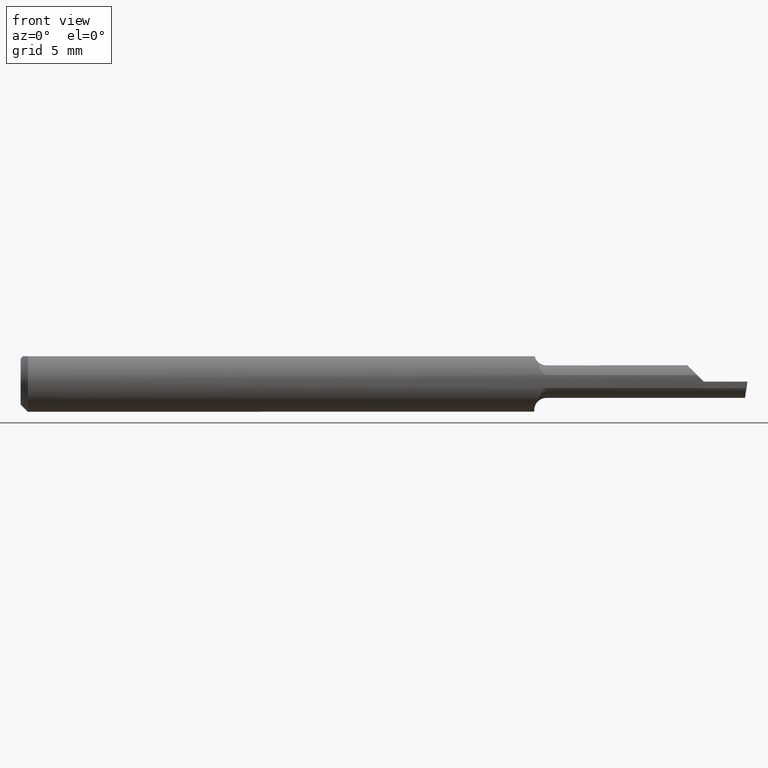
[diagram: clean part render]
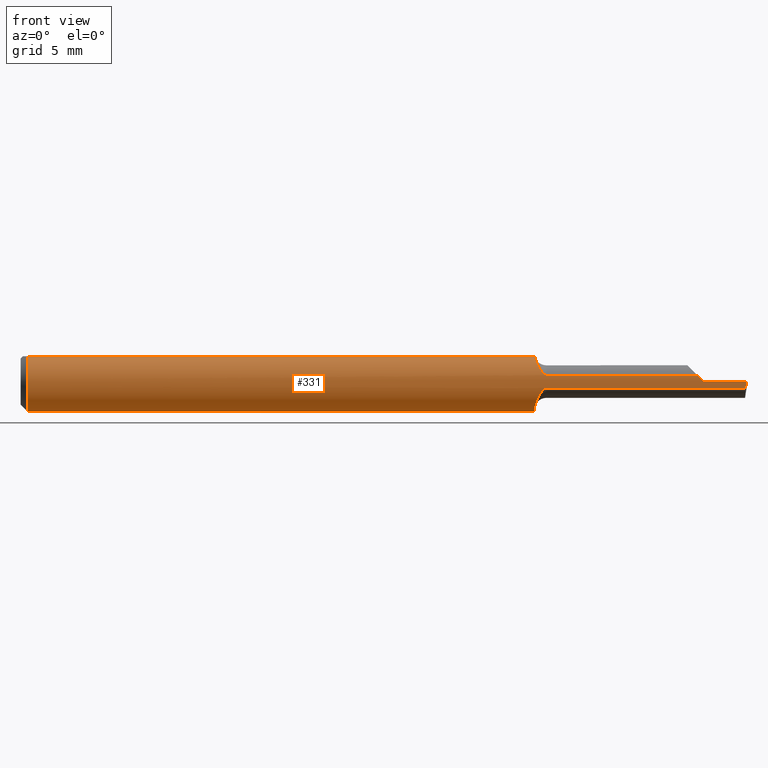
[diagram: same view with one face highlighted and labeled with its STEP entity id]
A machine part, front view. The second image highlights one B-rep face of the part: STEP entity #331.
In plain terms, the highlighted cylindrical surface (edge-blend (fillet) strip) has radius 1.5837 mm, axis along (-1, -0, -0).
Its self-contained STEP definition (entity closure, byte-faithful):
#9 = ORIENTED_EDGE ( 'NONE', *, *, #198, .T. ) ;
#15 = AXIS2_PLACEMENT_3D ( 'NONE', #221, #269, #394 ) ;
#17 = CARTESIAN_POINT ( 'NONE',  ( 1.062228576699353555, -0.04137438227418509945, 0.04686461655001718934 ) ) ;
#22 = CARTESIAN_POINT ( 'NONE',  ( 1.496875516891821967, -0.06187149898566946665, -0.008911023878839243254 ) ) ;
#29 = CARTESIAN_POINT ( 'NONE',  ( 1.405531640871310994, -0.06235000000000000958, 0.004468359128689231886 ) ) ;
#31 = CARTESIAN_POINT ( 'NONE',  ( 1.060000000000000275, 0.03386738844375224156, 0.05235000000000000070 ) ) ;
#33 =( BOUNDED_CURVE ( )  B_SPLINE_CURVE ( 3, ( #119, #29, #253, #484 ),
 .UNSPECIFIED., .F., .F. ) 
 B_SPLINE_CURVE_WITH_KNOTS ( ( 4, 4 ),
 ( 4.712388980384689674, 4.926973479604667361 ),
 .UNSPECIFIED. ) 
 CURVE ( )  GEOMETRIC_REPRESENTATION_ITEM ( )  RATIONAL_B_SPLINE_CURVE ( ( 1.000000000000000000, 0.9961664706887894960, 0.9961664706887894960, 1.000000000000000000 ) ) 
 REPRESENTATION_ITEM ( '' )  );
#34 = CARTESIAN_POINT ( 'NONE',  ( 1.060000000000000275, -0.02246166666666676859, -0.05816352835373341662 ) ) ;
#43 = CARTESIAN_POINT ( 'NONE',  ( 1.060459195061412618, -0.03294655339399239075, -0.05323881456264101253 ) ) ;
#44 = CARTESIAN_POINT ( 'NONE',  ( 1.396723099006168756, -0.06092000000000002968, 0.01327690099383124073 ) ) ;
#49 = EDGE_CURVE ( 'NONE', #413, #340, #466, .T. ) ;
#54 = VECTOR ( 'NONE', #473, 39.37007874015748143 ) ;
#59 = CARTESIAN_POINT ( 'NONE',  ( 1.060770118751884317, -0.03386738844373782253, 0.05235000000000000070 ) ) ;
#62 = DIRECTION ( 'NONE',  ( 1.000000000000000000, -2.845674993400274571E-18, 0.0000000000000000000 ) ) ;
#64 = AXIS2_PLACEMENT_3D ( 'NONE', #68, #259, #339 ) ;
#65 = B_SPLINE_CURVE_WITH_KNOTS ( 'NONE', 3,
 ( #59, #559, #17, #326, #328, #153, #516, #468, #156, #556, #471, #239, #291, #244 ),
 .UNSPECIFIED., .F., .F.,
 ( 4, 2, 2, 2, 2, 2, 4 ),
 ( 3.657393739027581265E-07, 0.0003570510026825781660, 0.0007137362659912535167, 0.001070421529299928976, 0.001248764160954266922, 0.001337935476781435679, 0.001427106792608604435 ),
 .UNSPECIFIED. ) ;
#66 = CARTESIAN_POINT ( 'NONE',  ( 1.060770118751884317, -0.03386738844373782253, 0.05235000000000000070 ) ) ;
#68 = CARTESIAN_POINT ( 'NONE',  ( 0.0000000000000000000, 0.0000000000000000000, 0.0000000000000000000 ) ) ;
#85 = EDGE_CURVE ( 'NONE', #391, #123, #465, .T. ) ;
#92 = CARTESIAN_POINT ( 'NONE',  ( 1.063806486637389748, -0.04605636197897010342, -0.04237644601823783996 ) ) ;
#100 = ORIENTED_EDGE ( 'NONE', *, *, #204, .F. ) ;
#101 = DIRECTION ( 'NONE',  ( 0.0000000000000000000, 0.0000000000000000000, 1.000000000000000000 ) ) ;
#102 = CARTESIAN_POINT ( 'NONE',  ( 0.0000000000000000000, -0.03386738844375222768, 0.05234999999999997988 ) ) ;
#103 = ORIENTED_EDGE ( 'NONE', *, *, #232, .F. ) ;
#105 =( BOUNDED_CURVE ( )  B_SPLINE_CURVE ( 3, ( #292, #22, #517, #376 ),
 .UNSPECIFIED., .F., .T. ) 
 B_SPLINE_CURVE_WITH_KNOTS ( ( 4, 4 ),
 ( 1.146162383294269560, 1.360746882514247469 ),
 .UNSPECIFIED. ) 
 CURVE ( )  GEOMETRIC_REPRESENTATION_ITEM ( )  RATIONAL_B_SPLINE_CURVE ( ( 1.000000000000000000, 0.9961664706887894960, 0.9961664706887894960, 1.000000000000000000 ) ) 
 REPRESENTATION_ITEM ( '' )  );
#110 = VECTOR ( 'NONE', #526, 39.37007874015748143 ) ;
#111 = DIRECTION ( 'NONE',  ( 0.0000000000000000000, 1.000000000000000000, 0.0000000000000000000 ) ) ;
#114 = EDGE_CURVE ( 'NONE', #463, #413, #118, .T. ) ;
#118 = CIRCLE ( 'NONE', #127, 0.06235000000000000264 ) ;
#119 = CARTESIAN_POINT ( 'NONE',  ( 1.409999999999999920, -0.06235000000000005121, 1.102182119232617911E-17 ) ) ;
#121 = EDGE_CURVE ( 'NONE', #329, #541, #335, .T. ) ;
#123 = VERTEX_POINT ( 'NONE', #34 ) ;
#127 = AXIS2_PLACEMENT_3D ( 'NONE', #142, #139, #101 ) ;
#134 = CARTESIAN_POINT ( 'NONE',  ( 1.059999999999999831, -0.02789725500421540855, -0.05606440581369923071 ) ) ;
#136 = VERTEX_POINT ( 'NONE', #502 ) ;
#139 = DIRECTION ( 'NONE',  ( -1.000000000000000000, -0.0000000000000000000, -0.0000000000000000000 ) ) ;
#142 = CARTESIAN_POINT ( 'NONE',  ( 0.01500000000000000465, 0.0000000000000000000, 0.0000000000000000000 ) ) ;
#153 = CARTESIAN_POINT ( 'NONE',  ( 1.069932821425532365, -0.05508260153816094823, 0.02952874505345454842 ) ) ;
#156 = CARTESIAN_POINT ( 'NONE',  ( 1.077368540304127764, -0.05962881332384153271, 0.01830066387367074859 ) ) ;
#163 = LINE ( 'NONE', #102, #54 ) ;
#164 = EDGE_LOOP ( 'NONE', ( #454, #223, #552, #181, #528, #103, #9, #217, #351, #278, #100, #368 ) ) ;
#169 = CARTESIAN_POINT ( 'NONE',  ( 2.249639673992780117E-32, -0.06234999999999999570, 1.836970198721026976E-16 ) ) ;
#170 = LINE ( 'NONE', #245, #459 ) ;
#174 = VERTEX_POINT ( 'NONE', #361 ) ;
#175 = CARTESIAN_POINT ( 'NONE',  ( 1.078839404641495303, -0.06006884725234332839, -0.01674793665629174116 ) ) ;
#181 = ORIENTED_EDGE ( 'NONE', *, *, #337, .T. ) ;
#194 = VECTOR ( 'NONE', #491, 39.37007874015748143 ) ;
#198 = EDGE_CURVE ( 'NONE', #254, #340, #163, .T. ) ;
#203 = CARTESIAN_POINT ( 'NONE',  ( 0.01500000000000000465, 0.0000000000000000000, -0.06235000000000000264 ) ) ;
#204 = EDGE_CURVE ( 'NONE', #123, #404, #438, .T. ) ;
#208 = CARTESIAN_POINT ( 'NONE',  ( 0.01500000000000000465, 0.03386738844375223462, 0.05234999999999997988 ) ) ;
#215 = CARTESIAN_POINT ( 'NONE',  ( 1.076050480108695639, -0.05911543623058085339, -0.01994584841871081468 ) ) ;
#217 = ORIENTED_EDGE ( 'NONE', *, *, #49, .F. ) ;
#221 = CARTESIAN_POINT ( 'NONE',  ( 0.01500000000000000465, 0.0000000000000000000, 0.0000000000000000000 ) ) ;
#223 = ORIENTED_EDGE ( 'NONE', *, *, #286, .T. ) ;
#226 = LINE ( 'NONE', #565, #110 ) ;
#227 = CARTESIAN_POINT ( 'NONE',  ( 1.409999999999999920, -0.06235000000000005121, 1.102182119232617911E-17 ) ) ;
#232 = EDGE_CURVE ( 'NONE', #254, #329, #65, .T. ) ;
#239 = CARTESIAN_POINT ( 'NONE',  ( 1.082669914596958050, -0.06082078945086089039, 0.01373977049058535890 ) ) ;
#244 = CARTESIAN_POINT ( 'NONE',  ( 1.085000000000000187, -0.06092000000000011989, 0.01327690099383098572 ) ) ;
#245 = CARTESIAN_POINT ( 'NONE',  ( 1.255000000000000115, -0.06092000000000002968, -0.01327690099383122685 ) ) ;
#253 = CARTESIAN_POINT ( 'NONE',  ( 1.401088976121160901, -0.06187149898566946665, 0.008911023878839208559 ) ) ;
#254 = VERTEX_POINT ( 'NONE', #66 ) ;
#259 = DIRECTION ( 'NONE',  ( -1.000000000000000000, -0.0000000000000000000, -0.0000000000000000000 ) ) ;
#265 = EDGE_CURVE ( 'NONE', #136, #391, #170, .T. ) ;
#269 = DIRECTION ( 'NONE',  ( -1.000000000000000000, -0.0000000000000000000, -0.0000000000000000000 ) ) ;
#277 = DIRECTION ( 'NONE',  ( 1.000000000000000000, -2.845674993400274571E-18, 0.0000000000000000000 ) ) ;
#278 = ORIENTED_EDGE ( 'NONE', *, *, #421, .T. ) ;
#279 = CARTESIAN_POINT ( 'NONE',  ( 1.255000000000000115, -0.06092000000000002968, 0.01327690099383122685 ) ) ;
#286 = EDGE_CURVE ( 'NONE', #136, #174, #105, .T. ) ;
#291 = CARTESIAN_POINT ( 'NONE',  ( 1.083800894846882246, -0.06092000000060116688, 0.01327690099107451532 ) ) ;
#292 = CARTESIAN_POINT ( 'NONE',  ( 1.496364186706980792, -0.06092000000000002968, -0.01327690099383122685 ) ) ;
#293 = DIRECTION ( 'NONE',  ( -1.000000000000000000, 2.845674993400274571E-18, -0.0000000000000000000 ) ) ;
#297 = CARTESIAN_POINT ( 'NONE',  ( 1.085000000000000187, -0.06092000000000011989, 0.01327690099383098572 ) ) ;
#302 = CARTESIAN_POINT ( 'NONE',  ( 1.085000000000000187, -0.06092000000000008519, -0.01327690099383104991 ) ) ;
#313 = CARTESIAN_POINT ( 'NONE',  ( 1.083515031386486527, -0.06092000000000005050, -0.01327690099383105685 ) ) ;
#326 = CARTESIAN_POINT ( 'NONE',  ( 1.064663954570610249, -0.04772651244230442791, 0.04037711979630428938 ) ) ;
#328 = CARTESIAN_POINT ( 'NONE',  ( 1.066221614559560882, -0.05050373301684462496, 0.03681593035639608991 ) ) ;
#329 = VERTEX_POINT ( 'NONE', #297 ) ;
#331 = ADVANCED_FACE ( 'NONE', ( #531 ), #503, .T. ) ;
#335 = LINE ( 'NONE', #279, #563 ) ;
#337 = EDGE_CURVE ( 'NONE', #572, #541, #33, .T. ) ;
#339 = DIRECTION ( 'NONE',  ( 0.0000000000000000000, 0.0000000000000000000, 1.000000000000000000 ) ) ;
#340 = VERTEX_POINT ( 'NONE', #388 ) ;
#351 = ORIENTED_EDGE ( 'NONE', *, *, #114, .F. ) ;
#354 = CARTESIAN_POINT ( 'NONE',  ( 1.074448669179930871, -0.05829317251375062264, -0.02226264029831841532 ) ) ;
#361 = CARTESIAN_POINT ( 'NONE',  ( 1.497957498117606479, -0.06235000000000005121, 1.791754701920804801E-19 ) ) ;
#368 = ORIENTED_EDGE ( 'NONE', *, *, #85, .F. ) ;
#376 = CARTESIAN_POINT ( 'NONE',  ( 1.497957498117606479, -0.06235000000000005121, 1.791754701920804801E-19 ) ) ;
#388 = CARTESIAN_POINT ( 'NONE',  ( 0.01500000000000185213, -0.03386738844380016850, 0.05235000000000000070 ) ) ;
#391 = VERTEX_POINT ( 'NONE', #302 ) ;
#394 = DIRECTION ( 'NONE',  ( 0.0000000000000000000, 0.0000000000000000000, 1.000000000000000000 ) ) ;
#400 = CARTESIAN_POINT ( 'NONE',  ( 1.079828686665877058, -0.06034170405075480609, -0.01572293840682431956 ) ) ;
#404 = VERTEX_POINT ( 'NONE', #31 ) ;
#413 = VERTEX_POINT ( 'NONE', #203 ) ;
#421 = EDGE_CURVE ( 'NONE', #463, #404, #226, .T. ) ;
#433 = EDGE_CURVE ( 'NONE', #174, #572, #457, .T. ) ;
#438 = CIRCLE ( 'NONE', #470, 0.06235000000000000264 ) ;
#441 = CARTESIAN_POINT ( 'NONE',  ( 1.082160137918816600, -0.06077026469959422028, -0.01397522694752832348 ) ) ;
#449 = CARTESIAN_POINT ( 'NONE',  ( 1.070064578917327980, -0.05535262368619134343, -0.02912723828542086030 ) ) ;
#450 = CARTESIAN_POINT ( 'NONE',  ( 1.060000000000000275, -0.02246166666666676859, -0.05816352835373341662 ) ) ;
#454 = ORIENTED_EDGE ( 'NONE', *, *, #265, .F. ) ;
#457 = LINE ( 'NONE', #169, #194 ) ;
#459 = VECTOR ( 'NONE', #293, 39.37007874015748143 ) ;
#463 = VERTEX_POINT ( 'NONE', #208 ) ;
#465 = B_SPLINE_CURVE_WITH_KNOTS ( 'NONE', 3,
 ( #576, #313, #441, #400, #175, #215, #354, #449, #488, #92, #494, #43, #134, #450 ),
 .UNSPECIFIED., .F., .F.,
 ( 4, 2, 2, 2, 2, 2, 4 ),
 ( 1.965909345844155589E-07, 0.0001114396223726250092, 0.0002226826538106656077, 0.0004451687166867400827, 0.0008901408424388890326, 0.001335112968191038470, 0.001780085093943187908 ),
 .UNSPECIFIED. ) ;
#466 = CIRCLE ( 'NONE', #15, 0.06235000000000000264 ) ;
#468 = CARTESIAN_POINT ( 'NONE',  ( 1.075983073081282049, -0.05904190537839694441, 0.02013745427411970865 ) ) ;
#469 = CARTESIAN_POINT ( 'NONE',  ( 1.060000000000000275, 0.0000000000000000000, 0.0000000000000000000 ) ) ;
#470 = AXIS2_PLACEMENT_3D ( 'NONE', #469, #62, #111 ) ;
#471 = CARTESIAN_POINT ( 'NONE',  ( 1.080680476387446909, -0.06051938329563266716, 0.01501179429902400712 ) ) ;
#473 = DIRECTION ( 'NONE',  ( -1.000000000000000000, -0.0000000000000000000, -0.0000000000000000000 ) ) ;
#484 = CARTESIAN_POINT ( 'NONE',  ( 1.396723099006168756, -0.06092000000000002968, 0.01327690099383124073 ) ) ;
#488 = CARTESIAN_POINT ( 'NONE',  ( 1.067651921643428814, -0.05268295501176721574, -0.03378546887498617979 ) ) ;
#491 = DIRECTION ( 'NONE',  ( -1.000000000000000000, -0.0000000000000000000, -0.0000000000000000000 ) ) ;
#494 = CARTESIAN_POINT ( 'NONE',  ( 1.062355689262080460, -0.04203237437577737184, -0.04640179157007805200 ) ) ;
#502 = CARTESIAN_POINT ( 'NONE',  ( 1.496364186706980792, -0.06092000000000002968, -0.01327690099383122685 ) ) ;
#503 = CYLINDRICAL_SURFACE ( 'NONE', #64, 0.06235000000000000264 ) ;
#516 = CARTESIAN_POINT ( 'NONE',  ( 1.072102256738829862, -0.05694092632992445863, 0.02571027090688613251 ) ) ;
#517 = CARTESIAN_POINT ( 'NONE',  ( 1.497408664532471567, -0.06235000000000000958, -0.004468359128689266581 ) ) ;
#526 = DIRECTION ( 'NONE',  ( 1.000000000000000000, 0.0000000000000000000, 0.0000000000000000000 ) ) ;
#528 = ORIENTED_EDGE ( 'NONE', *, *, #121, .F. ) ;
#531 = FACE_OUTER_BOUND ( 'NONE', #164, .T. ) ;
#541 = VERTEX_POINT ( 'NONE', #44 ) ;
#552 = ORIENTED_EDGE ( 'NONE', *, *, #433, .T. ) ;
#556 = CARTESIAN_POINT ( 'NONE',  ( 1.079807319243623942, -0.06032049651225029202, 0.01580211994234496584 ) ) ;
#559 = CARTESIAN_POINT ( 'NONE',  ( 1.061344833552323452, -0.03782458604559962856, 0.04978992457821582868 ) ) ;
#563 = VECTOR ( 'NONE', #277, 39.37007874015748143 ) ;
#565 = CARTESIAN_POINT ( 'NONE',  ( 0.0000000000000000000, 0.03386738844375223462, 0.05234999999999997988 ) ) ;
#572 = VERTEX_POINT ( 'NONE', #227 ) ;
#576 = CARTESIAN_POINT ( 'NONE',  ( 1.085000000000000187, -0.06092000000000008519, -0.01327690099383104991 ) ) ;